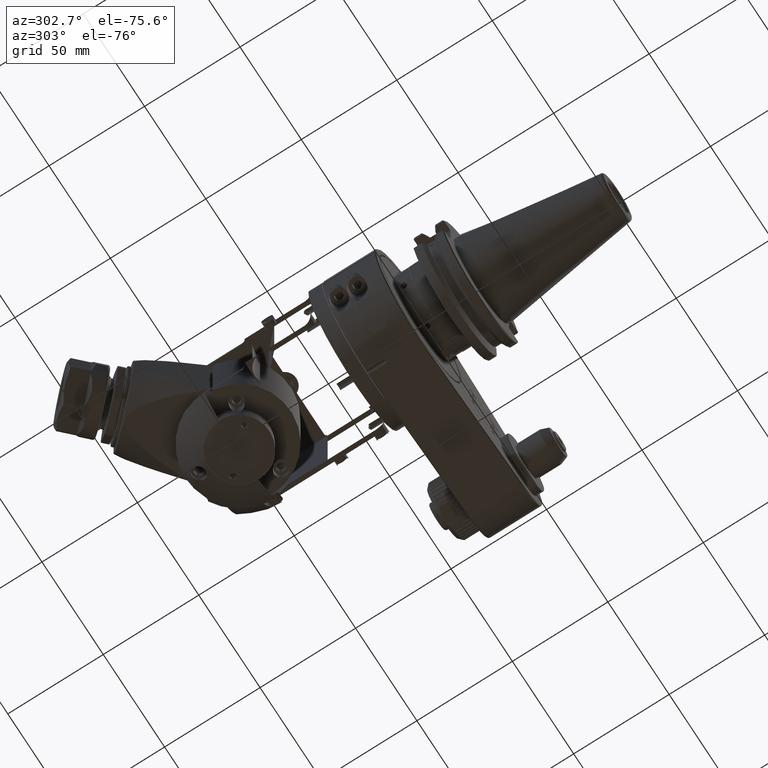
[diagram: clean part render]
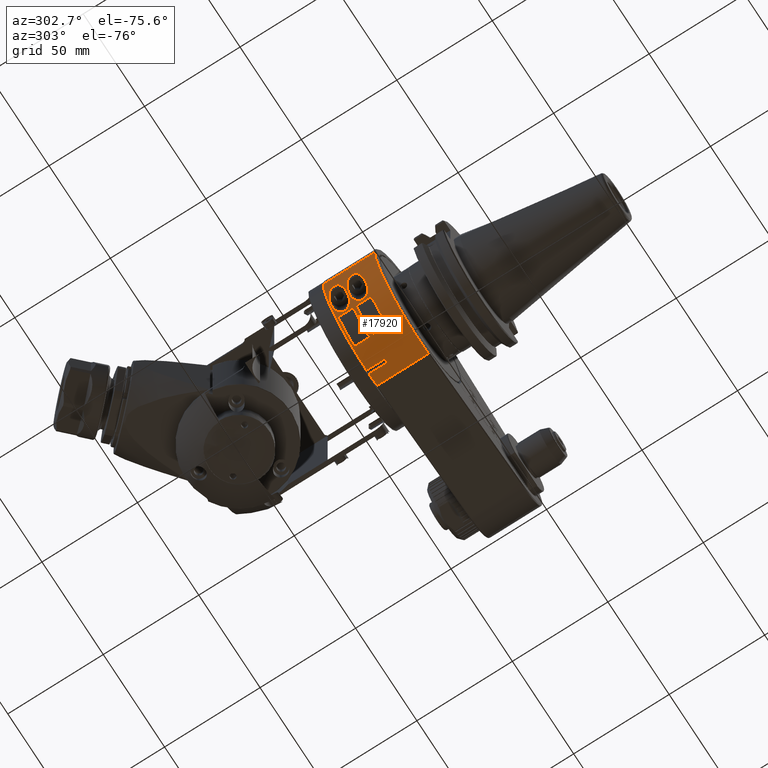
[diagram: same view with one face highlighted and labeled with its STEP entity id]
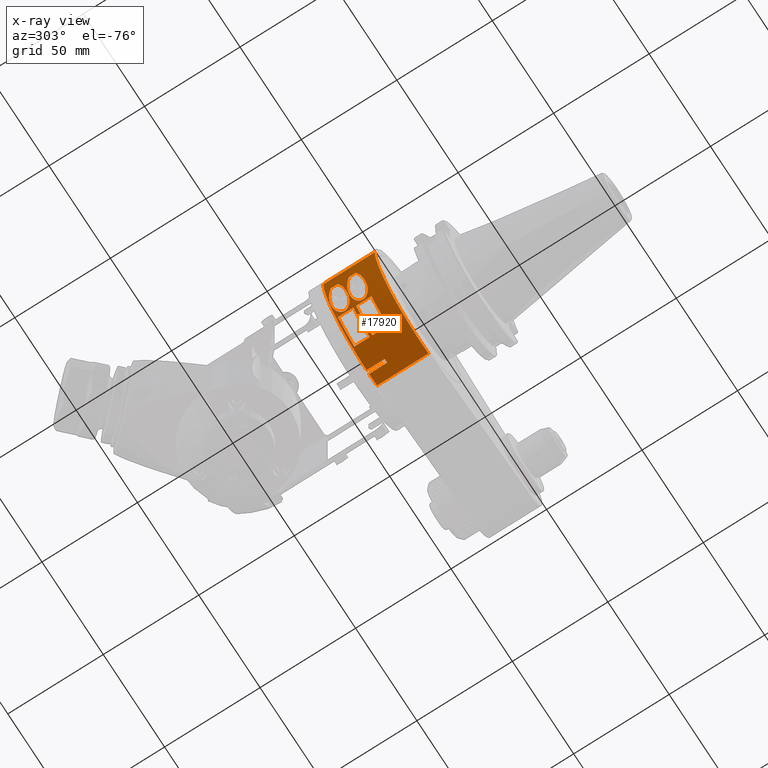
[diagram: x-ray of the same camera — body ghosted, the highlighted face saturated]
A machine part, auxiliary view. The second image highlights one B-rep face of the part: STEP entity #17920.
The next image is the same camera in x-ray: the body ghosted, the highlighted face saturated — about 0% of this face is hidden behind the body in this view.
In plain terms, the highlighted cylindrical surface (partial cylindrical patch) has radius 36.5 mm, axis along (0, -1, 0).
Its self-contained STEP definition (entity closure, byte-faithful):
#1019=FACE_BOUND('',#2759,.T.);
#1020=FACE_BOUND('',#2760,.T.);
#1021=FACE_BOUND('',#2761,.T.);
#1022=FACE_BOUND('',#2762,.T.);
#1592=FACE_OUTER_BOUND('',#2758,.T.);
#2758=EDGE_LOOP('',(#14453,#14454,#14455,#14456,#14457,#14458,#14459,#14460));
#2759=EDGE_LOOP('',(#14461,#14462));
#2760=EDGE_LOOP('',(#14463,#14464));
#2761=EDGE_LOOP('',(#14465,#14466,#14467,#14468));
#2762=EDGE_LOOP('',(#14469,#14470,#14471,#14472));
#3978=CIRCLE('',#19682,36.5);
#3980=CIRCLE('',#19687,36.5);
#4016=CIRCLE('',#19752,36.5);
#4017=CIRCLE('',#19754,36.5);
#4018=CIRCLE('',#19755,36.5);
#4019=CIRCLE('',#19756,36.5);
#4020=CIRCLE('',#19757,36.5);
#4021=CIRCLE('',#19758,36.5);
#5031=LINE('',#31588,#6324);
#5035=LINE('',#31596,#6328);
#5040=LINE('',#31610,#6333);
#5076=LINE('',#31754,#6369);
#5078=LINE('',#31797,#6371);
#5079=LINE('',#31834,#6372);
#5080=LINE('',#31837,#6373);
#5081=LINE('',#31841,#6374);
#5082=LINE('',#31845,#6375);
#5083=LINE('',#31849,#6376);
#6324=VECTOR('',#23562,9.499835191513);
#6328=VECTOR('',#23568,9.499835191513);
#6333=VECTOR('',#23581,10.);
#6369=VECTOR('',#23739,26.99995876983);
#6371=VECTOR('',#23751,3.694295867981);
#6372=VECTOR('',#23752,3.694295867981);
#6373=VECTOR('',#23753,8.);
#6374=VECTOR('',#23756,8.);
#6375=VECTOR('',#23759,8.);
#6376=VECTOR('',#23762,8.);
#7104=B_SPLINE_CURVE_WITH_KNOTS('',3,(#31763,#31764,#31765,#31766,#31767,
#31768,#31769,#31770,#31771,#31772,#31773,#31774,#31775,#31776,#31777,#31778,
#31779,#31780,#31781,#31782,#31783,#31784,#31785,#31786,#31787,#31788,#31789,
#31790,#31791,#31792,#31793,#31794,#31795,#31796),.UNSPECIFIED.,.F.,.F.,
(4,2,2,2,2,2,2,2,2,2,2,2,2,2,2,2,4),(-4.08212593023051,-4.0663653337287,
-3.92700495181726,-3.50301884330559,-3.07903273479392,-2.78345820935542,
-2.48788368391692,-2.32480852328126,-2.1617333626456,-1.99865820200993,
-1.83558304137427,-1.54000851593577,-1.24443399049728,-0.820447881985602,
-0.396461773473929,-0.257101391562492,-0.241340795060682),.UNSPECIFIED.);
#7105=B_SPLINE_CURVE_WITH_KNOTS('',3,(#31800,#31801,#31802,#31803,#31804,
#31805,#31806,#31807,#31808,#31809,#31810,#31811,#31812,#31813,#31814,#31815,
#31816,#31817,#31818,#31819,#31820,#31821,#31822,#31823,#31824,#31825,#31826,
#31827,#31828,#31829,#31830,#31831,#31832,#31833),.UNSPECIFIED.,.F.,.F.,
(4,2,2,2,2,2,2,2,2,2,2,2,2,2,2,2,4),(-4.08212593023051,-4.0663653337287,
-3.92700495181726,-3.50301884330559,-3.07903273479391,-2.78345820935542,
-2.48788368391692,-2.32480852328126,-2.1617333626456,-1.99865820200993,
-1.83558304137427,-1.54000851593577,-1.24443399049728,-0.820447881985602,
-0.396461773473928,-0.257101391562492,-0.241340795060682),.UNSPECIFIED.);
#8210=VERTEX_POINT('',#31579);
#8211=VERTEX_POINT('',#31583);
#8212=VERTEX_POINT('',#31587);
#8214=VERTEX_POINT('',#31593);
#8215=VERTEX_POINT('',#31595);
#8216=VERTEX_POINT('',#31599);
#8220=VERTEX_POINT('',#31609);
#8267=VERTEX_POINT('',#31752);
#8268=VERTEX_POINT('',#31761);
#8269=VERTEX_POINT('',#31762);
#8270=VERTEX_POINT('',#31798);
#8271=VERTEX_POINT('',#31799);
#8272=VERTEX_POINT('',#31835);
#8273=VERTEX_POINT('',#31836);
#8274=VERTEX_POINT('',#31838);
#8275=VERTEX_POINT('',#31840);
#8276=VERTEX_POINT('',#31843);
#8277=VERTEX_POINT('',#31844);
#8278=VERTEX_POINT('',#31846);
#8279=VERTEX_POINT('',#31848);
#10396=EDGE_CURVE('',#8210,#8211,#3978,.T.);
#10397=EDGE_CURVE('',#8211,#8212,#5031,.T.);
#10401=EDGE_CURVE('',#8215,#8214,#5035,.T.);
#10403=EDGE_CURVE('',#8215,#8216,#3980,.T.);
#10408=EDGE_CURVE('',#8216,#8220,#5040,.T.);
#10479=EDGE_CURVE('',#8210,#8267,#5076,.T.);
#10481=EDGE_CURVE('',#8220,#8267,#4016,.T.);
#10482=EDGE_CURVE('',#8214,#8212,#4017,.T.);
#10483=EDGE_CURVE('',#8268,#8269,#7104,.T.);
#10484=EDGE_CURVE('',#8269,#8268,#5078,.T.);
#10485=EDGE_CURVE('',#8270,#8271,#7105,.T.);
#10486=EDGE_CURVE('',#8271,#8270,#5079,.T.);
#10487=EDGE_CURVE('',#8272,#8273,#5080,.T.);
#10488=EDGE_CURVE('',#8273,#8274,#4018,.T.);
#10489=EDGE_CURVE('',#8275,#8274,#5081,.T.);
#10490=EDGE_CURVE('',#8272,#8275,#4019,.T.);
#10491=EDGE_CURVE('',#8276,#8277,#5082,.T.);
#10492=EDGE_CURVE('',#8277,#8278,#4020,.T.);
#10493=EDGE_CURVE('',#8279,#8278,#5083,.T.);
#10494=EDGE_CURVE('',#8276,#8279,#4021,.T.);
#14453=ORIENTED_EDGE('',*,*,#10482,.T.);
#14454=ORIENTED_EDGE('',*,*,#10397,.F.);
#14455=ORIENTED_EDGE('',*,*,#10396,.F.);
#14456=ORIENTED_EDGE('',*,*,#10479,.T.);
#14457=ORIENTED_EDGE('',*,*,#10481,.F.);
#14458=ORIENTED_EDGE('',*,*,#10408,.F.);
#14459=ORIENTED_EDGE('',*,*,#10403,.F.);
#14460=ORIENTED_EDGE('',*,*,#10401,.T.);
#14461=ORIENTED_EDGE('',*,*,#10483,.T.);
#14462=ORIENTED_EDGE('',*,*,#10484,.T.);
#14463=ORIENTED_EDGE('',*,*,#10485,.T.);
#14464=ORIENTED_EDGE('',*,*,#10486,.T.);
#14465=ORIENTED_EDGE('',*,*,#10487,.T.);
#14466=ORIENTED_EDGE('',*,*,#10488,.T.);
#14467=ORIENTED_EDGE('',*,*,#10489,.F.);
#14468=ORIENTED_EDGE('',*,*,#10490,.F.);
#14469=ORIENTED_EDGE('',*,*,#10491,.T.);
#14470=ORIENTED_EDGE('',*,*,#10492,.T.);
#14471=ORIENTED_EDGE('',*,*,#10493,.F.);
#14472=ORIENTED_EDGE('',*,*,#10494,.F.);
#17253=CYLINDRICAL_SURFACE('',#19753,36.5);
#17920=ADVANCED_FACE('',(#1592,#1019,#1020,#1021,#1022),#17253,.T.);
#19682=AXIS2_PLACEMENT_3D('',#31585,#23558,#23559);
#19687=AXIS2_PLACEMENT_3D('',#31600,#23573,#23574);
#19752=AXIS2_PLACEMENT_3D('',#31758,#23745,#23746);
#19753=AXIS2_PLACEMENT_3D('',#31759,#23747,#23748);
#19754=AXIS2_PLACEMENT_3D('',#31760,#23749,#23750);
#19755=AXIS2_PLACEMENT_3D('',#31839,#23754,#23755);
#19756=AXIS2_PLACEMENT_3D('',#31842,#23757,#23758);
#19757=AXIS2_PLACEMENT_3D('',#31847,#23760,#23761);
#19758=AXIS2_PLACEMENT_3D('',#31850,#23763,#23764);
#23558=DIRECTION('center_axis',(0.,1.,0.));
#23559=DIRECTION('ref_axis',(0.206249999999996,0.,-0.978499329330379));
#23562=DIRECTION('',(0.,-1.,0.));
#23568=DIRECTION('',(0.,-1.,0.));
#23573=DIRECTION('center_axis',(0.,1.,0.));
#23574=DIRECTION('ref_axis',(-0.0270318334945699,0.,-0.999634573220595));
#23581=DIRECTION('',(0.,-1.,0.));
#23739=DIRECTION('',(-2.120057493026E-10,-1.,1.048212665938E-9));
#23745=DIRECTION('center_axis',(0.,-1.,0.));
#23746=DIRECTION('ref_axis',(-0.9997888686857,0.,-0.02054794520548));
#23747=DIRECTION('center_axis',(0.,-1.,0.));
#23748=DIRECTION('ref_axis',(0.,0.,-1.));
#23749=DIRECTION('center_axis',(0.,-1.,0.));
#23750=DIRECTION('ref_axis',(-0.0270318334945699,0.,-0.999634573220595));
#23751=DIRECTION('',(0.,-1.,0.));
#23752=DIRECTION('',(0.,-1.,0.));
#23753=DIRECTION('',(0.,-1.,0.));
#23754=DIRECTION('center_axis',(0.,-1.,0.));
#23755=DIRECTION('ref_axis',(-0.707106781186548,0.,-0.707106781186548));
#23756=DIRECTION('',(0.,-1.,0.));
#23757=DIRECTION('center_axis',(0.,-1.,0.));
#23758=DIRECTION('ref_axis',(-0.707106781186548,0.,-0.707106781186548));
#23759=DIRECTION('',(0.,-1.,0.));
#23760=DIRECTION('center_axis',(0.,-1.,0.));
#23761=DIRECTION('ref_axis',(-0.707106781186548,0.,-0.707106781186548));
#23762=DIRECTION('',(0.,-1.,0.));
#23763=DIRECTION('center_axis',(0.,-1.,0.));
#23764=DIRECTION('ref_axis',(-0.707106781186548,0.,-0.707106781186548));
#31579=CARTESIAN_POINT('',(7.52812006363607,-0.50005124586895,-35.7152019106784));
#31583=CARTESIAN_POINT('',(0.9866619225517,-0.5001648084872,-36.48666192255));
#31585=CARTESIAN_POINT('Origin',(0.,-0.5001648084872,0.));
#31587=CARTESIAN_POINT('',(0.9866619225517,-10.,-36.48666192255));
#31588=CARTESIAN_POINT('',(0.9866619225517,-0.5001648084872,-36.48666192255));
#31593=CARTESIAN_POINT('',(-0.9866619225517,-10.,-36.48666192255));
#31595=CARTESIAN_POINT('',(-0.9866619225517,-0.5001648084872,-36.48666192255));
#31596=CARTESIAN_POINT('',(-0.9866619225517,-0.5001648084872,-36.48666192255));
#31599=CARTESIAN_POINT('',(-36.4922525136061,-0.500123606182106,-0.749999153382687));
#31600=CARTESIAN_POINT('Origin',(0.,-0.5001648084872,0.));
#31609=CARTESIAN_POINT('',(-36.4922524558829,-27.4998762206058,-0.749999152196243));
#31610=CARTESIAN_POINT('',(-36.4922937070281,0.,-0.75));
#31752=CARTESIAN_POINT('',(7.52812005689367,-27.4999486823243,-35.7152018775579));
#31754=CARTESIAN_POINT('',(7.528120789429,-0.5000206006538,-35.71520535402));
#31758=CARTESIAN_POINT('Origin',(0.,-27.49983496056,0.));
#31759=CARTESIAN_POINT('Origin',(0.,0.,0.));
#31760=CARTESIAN_POINT('Origin',(0.,-10.,0.));
#31761=CARTESIAN_POINT('',(-35.10341863694,-7.34714793399,-10.));
#31762=CARTESIAN_POINT('',(-35.10341863694,-3.65285206601,-10.));
#31763=CARTESIAN_POINT('Ctrl Pts',(-35.1034186369365,-7.34714793398975,
-9.99999999999915));
#31764=CARTESIAN_POINT('Ctrl Pts',(-35.090072067439,-7.37679719001698,-10.0468510216428));
#31765=CARTESIAN_POINT('Ctrl Pts',(-35.0765280089736,-7.40602678391537,
-10.0940389077889));
#31766=CARTESIAN_POINT('Ctrl Pts',(-34.9414751553076,-7.68961224377038,
-10.5609661763492));
#31767=CARTESIAN_POINT('Ctrl Pts',(-34.8057165874079,-7.91232941714042,
-10.999668268003));
#31768=CARTESIAN_POINT('Ctrl Pts',(-34.2689978386534,-8.67056494145891,
-12.6316075947882));
#31769=CARTESIAN_POINT('Ctrl Pts',(-33.7391470442879,-9.14093661329319,
-14.0058278406891));
#31770=CARTESIAN_POINT('Ctrl Pts',(-32.478206840884,-9.80978198364256,-16.7230192650202));
#31771=CARTESIAN_POINT('Ctrl Pts',(-31.7460548183501,-10.,-18.0675228986952));
#31772=CARTESIAN_POINT('Ctrl Pts',(-30.47990088718,-10.,-20.1046351957231));
#31773=CARTESIAN_POINT('Ctrl Pts',(-29.8748790315658,-9.90689263040185,
-20.9948189886798));
#31774=CARTESIAN_POINT('Ctrl Pts',(-28.6555088343097,-9.39743104096174,
-22.630789273787));
#31775=CARTESIAN_POINT('Ctrl Pts',(-28.0417139842613,-8.98279865331828,
-23.3775238736412));
#31776=CARTESIAN_POINT('Ctrl Pts',(-27.255105682922,-8.03336651673894,-24.2814896693462));
#31777=CARTESIAN_POINT('Ctrl Pts',(-26.9836586623239,-7.59811122809576,
-24.5806806924374));
#31778=CARTESIAN_POINT('Ctrl Pts',(-26.605108293389,-6.60363184010129,-24.9899159971988));
#31779=CARTESIAN_POINT('Ctrl Pts',(-26.5,-6.04358386878555,-25.0998007960223));
#31780=CARTESIAN_POINT('Ctrl Pts',(-26.5,-4.95641613121445,-25.0998007960223));
#31781=CARTESIAN_POINT('Ctrl Pts',(-26.605108293389,-4.39636815989872,-24.9899159971988));
#31782=CARTESIAN_POINT('Ctrl Pts',(-26.9836586623239,-3.40188877190424,
-24.5806806924374));
#31783=CARTESIAN_POINT('Ctrl Pts',(-27.255105682922,-2.96663348326106,-24.2814896693462));
#31784=CARTESIAN_POINT('Ctrl Pts',(-28.0417139842613,-2.01720134668172,
-23.3775238736412));
#31785=CARTESIAN_POINT('Ctrl Pts',(-28.6555088343097,-1.60256895903826,
-22.630789273787));
#31786=CARTESIAN_POINT('Ctrl Pts',(-29.8748790315658,-1.09310736959815,
-20.9948189886798));
#31787=CARTESIAN_POINT('Ctrl Pts',(-30.47990088718,-1.,-20.1046351957231));
#31788=CARTESIAN_POINT('Ctrl Pts',(-31.7460548183501,-1.,-18.0675228986952));
#31789=CARTESIAN_POINT('Ctrl Pts',(-32.478206840884,-1.19021801635744,-16.7230192650202));
#31790=CARTESIAN_POINT('Ctrl Pts',(-33.7391470442879,-1.85906338670682,
-14.0058278406891));
#31791=CARTESIAN_POINT('Ctrl Pts',(-34.2689978386534,-2.32943505854109,
-12.6316075947882));
#31792=CARTESIAN_POINT('Ctrl Pts',(-34.8057165874079,-3.08767058285958,
-10.9996682680029));
#31793=CARTESIAN_POINT('Ctrl Pts',(-34.9414751553076,-3.31038775622962,
-10.5609661763492));
#31794=CARTESIAN_POINT('Ctrl Pts',(-35.0765280089736,-3.59397321608464,
-10.0940389077889));
#31795=CARTESIAN_POINT('Ctrl Pts',(-35.090072067439,-3.62320280998302,-10.0468510216428));
#31796=CARTESIAN_POINT('Ctrl Pts',(-35.1034186369365,-3.65285206601025,
-9.99999999999915));
#31797=CARTESIAN_POINT('',(-35.10341863694,-3.65285206601,-10.));
#31798=CARTESIAN_POINT('',(-35.10341863694,-16.84714793399,-10.));
#31799=CARTESIAN_POINT('',(-35.10341863694,-13.15285206601,-10.));
#31800=CARTESIAN_POINT('Ctrl Pts',(-35.1034186369365,-16.8471479339898,
-9.99999999999914));
#31801=CARTESIAN_POINT('Ctrl Pts',(-35.090072067439,-16.876797190017,-10.0468510216428));
#31802=CARTESIAN_POINT('Ctrl Pts',(-35.0765280089736,-16.9060267839154,
-10.0940389077889));
#31803=CARTESIAN_POINT('Ctrl Pts',(-34.9414751553076,-17.1896122437704,
-10.5609661763493));
#31804=CARTESIAN_POINT('Ctrl Pts',(-34.8057165874079,-17.4123294171404,
-10.999668268003));
#31805=CARTESIAN_POINT('Ctrl Pts',(-34.2689978386534,-18.1705649414589,
-12.6316075947882));
#31806=CARTESIAN_POINT('Ctrl Pts',(-33.7391470442879,-18.6409366132932,
-14.0058278406891));
#31807=CARTESIAN_POINT('Ctrl Pts',(-32.478206840884,-19.3097819836426,-16.7230192650202));
#31808=CARTESIAN_POINT('Ctrl Pts',(-31.7460548183501,-19.5,-18.0675228986952));
#31809=CARTESIAN_POINT('Ctrl Pts',(-30.47990088718,-19.5,-20.1046351957231));
#31810=CARTESIAN_POINT('Ctrl Pts',(-29.8748790315658,-19.4068926304019,
-20.9948189886798));
#31811=CARTESIAN_POINT('Ctrl Pts',(-28.6555088343097,-18.8974310409617,
-22.630789273787));
#31812=CARTESIAN_POINT('Ctrl Pts',(-28.0417139842613,-18.4827986533183,
-23.3775238736412));
#31813=CARTESIAN_POINT('Ctrl Pts',(-27.255105682922,-17.5333665167389,-24.2814896693462));
#31814=CARTESIAN_POINT('Ctrl Pts',(-26.9836586623239,-17.0981112280958,
-24.5806806924374));
#31815=CARTESIAN_POINT('Ctrl Pts',(-26.605108293389,-16.1036318401013,-24.9899159971988));
#31816=CARTESIAN_POINT('Ctrl Pts',(-26.5,-15.5435838687855,-25.0998007960223));
#31817=CARTESIAN_POINT('Ctrl Pts',(-26.5,-14.4564161312145,-25.0998007960223));
#31818=CARTESIAN_POINT('Ctrl Pts',(-26.605108293389,-13.8963681598987,-24.9899159971988));
#31819=CARTESIAN_POINT('Ctrl Pts',(-26.9836586623239,-12.9018887719042,
-24.5806806924374));
#31820=CARTESIAN_POINT('Ctrl Pts',(-27.255105682922,-12.4666334832611,-24.2814896693462));
#31821=CARTESIAN_POINT('Ctrl Pts',(-28.0417139842613,-11.5172013466817,
-23.3775238736412));
#31822=CARTESIAN_POINT('Ctrl Pts',(-28.6555088343097,-11.1025689590383,
-22.630789273787));
#31823=CARTESIAN_POINT('Ctrl Pts',(-29.8748790315658,-10.5931073695981,
-20.9948189886798));
#31824=CARTESIAN_POINT('Ctrl Pts',(-30.47990088718,-10.5,-20.1046351957231));
#31825=CARTESIAN_POINT('Ctrl Pts',(-31.7460548183501,-10.5,-18.0675228986952));
#31826=CARTESIAN_POINT('Ctrl Pts',(-32.478206840884,-10.6902180163574,-16.7230192650202));
#31827=CARTESIAN_POINT('Ctrl Pts',(-33.7391470442879,-11.3590633867068,
-14.0058278406891));
#31828=CARTESIAN_POINT('Ctrl Pts',(-34.2689978386534,-11.8294350585411,
-12.6316075947882));
#31829=CARTESIAN_POINT('Ctrl Pts',(-34.8057165874079,-12.5876705828596,
-10.9996682680029));
#31830=CARTESIAN_POINT('Ctrl Pts',(-34.9414751553076,-12.8103877562296,
-10.5609661763492));
#31831=CARTESIAN_POINT('Ctrl Pts',(-35.0765280089736,-13.0939732160846,
-10.0940389077889));
#31832=CARTESIAN_POINT('Ctrl Pts',(-35.090072067439,-13.123202809983,-10.0468510216428));
#31833=CARTESIAN_POINT('Ctrl Pts',(-35.1034186369364,-13.1528520660102,
-9.99999999999915));
#31834=CARTESIAN_POINT('',(-35.10341863694,-13.15285206601,-10.));
#31835=CARTESIAN_POINT('',(-25.80939751331,-1.5,-25.80939751331));
#31836=CARTESIAN_POINT('',(-25.80939751331,-9.5,-25.80939751331));
#31837=CARTESIAN_POINT('',(-25.80939751331,-1.5,-25.80939751331));
#31838=CARTESIAN_POINT('',(-12.48373523139,-9.5,-34.29878065869));
#31839=CARTESIAN_POINT('Origin',(0.,-9.5,0.));
#31840=CARTESIAN_POINT('',(-12.48373523139,-1.5,-34.29878065869));
#31841=CARTESIAN_POINT('',(-12.48373523139,-1.5,-34.29878065869));
#31842=CARTESIAN_POINT('Origin',(0.,-1.5,0.));
#31843=CARTESIAN_POINT('',(-25.80939751331,-11.,-25.80939751331));
#31844=CARTESIAN_POINT('',(-25.80939751331,-19.,-25.80939751331));
#31845=CARTESIAN_POINT('',(-25.80939751331,-11.,-25.80939751331));
#31846=CARTESIAN_POINT('',(-12.48373523139,-19.,-34.29878065869));
#31847=CARTESIAN_POINT('Origin',(0.,-19.,0.));
#31848=CARTESIAN_POINT('',(-12.48373523139,-11.,-34.29878065869));
#31849=CARTESIAN_POINT('',(-12.48373523139,-11.,-34.29878065869));
#31850=CARTESIAN_POINT('Origin',(0.,-11.,0.));